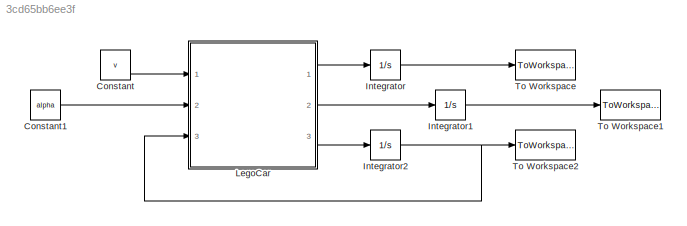
MODEL slx_3cd65bb6ee3f
KIND model
CONFIG AbsTol = auto
CONFIG FixedStep = auto
CONFIG MaxStep = auto
CONFIG MinStep = auto
CONFIG RelTol = 1e-5
CONFIG SampleTimeConstraint = Unconstrained
CONFIG Solver = VariableStepAuto
CONFIG SolverMode = Auto
CONFIG SolverName = VariableStepAuto
CONFIG StartTime = 0.0
CONFIG StopTime = 0.2
BLOCK [Constant] Constant
  Value = v
BLOCK [Constant] Constant1
  Value = alpha
BLOCK [Integrator] Integrator
  InitialCondition = x_car0
  Ports = [1, 1]
BLOCK [Integrator] Integrator1
  InitialCondition = y_car0
  Ports = [1, 1]
BLOCK [Integrator] Integrator2
  InitialCondition = theta0
  Ports = [1, 1]
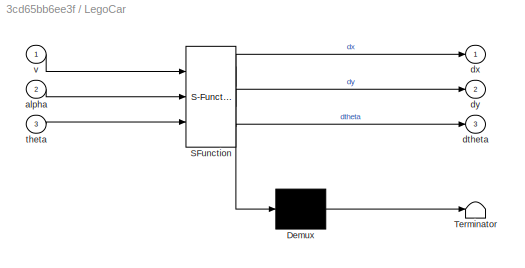
BLOCK [SubSystem] LegoCar
  ErrorFcn = Stateflow.Translate.translate
  PermitHierarchicalResolution = ExplicitOnly
  Ports = [3, 3]
  RequestExecContextInheritance = off
  SFBlockType = MATLAB Function
  TreatAsAtomicUnit = on
  Variant = off
BLOCK [Demux] LegoCar/ Demux 
  Outputs = 1
  Ports = [1, 1]
BLOCK [S-Function] LegoCar/ SFunction 
  EnableBusSupport = on
  FunctionName = sf_sfun
  PortCounts = [3 4]
  Ports = [3, 4]
  SFunctionDeploymentMode = off
  Tag = Stateflow S-Function legocar 2
BLOCK [Terminator] LegoCar/ Terminator 
BLOCK [Inport] LegoCar/alpha
  IconDisplay = Port number
  Port = 2
BLOCK [Outport] LegoCar/dtheta
  IconDisplay = Port number
  Port = 3
BLOCK [Outport] LegoCar/dx
  IconDisplay = Port number
BLOCK [Outport] LegoCar/dy
  IconDisplay = Port number
  Port = 2
BLOCK [Inport] LegoCar/theta
  IconDisplay = Port number
  Port = 3
BLOCK [Inport] LegoCar/v
  IconDisplay = Port number
BLOCK [ToWorkspace] To Workspace
  FixptAsFi = on
  MaxDataPoints = inf
  Ports = [1]
  SampleTime = -1
  Save2DSignal = 3-D array (concatenate along third dimension)
  SaveFormat = Timeseries
  VariableName = x_car_sim
BLOCK [ToWorkspace] To Workspace1
  FixptAsFi = on
  MaxDataPoints = inf
  Ports = [1]
  SampleTime = -1
  Save2DSignal = 3-D array (concatenate along third dimension)
  SaveFormat = Timeseries
  VariableName = y_car_sim
BLOCK [ToWorkspace] To Workspace2
  FixptAsFi = on
  MaxDataPoints = inf
  Ports = [1]
  SampleTime = -1
  Save2DSignal = 3-D array (concatenate along third dimension)
  SaveFormat = Timeseries
  VariableName = theta_sim
LINE Constant1:1 -> LegoCar:2
LINE Constant:1 -> LegoCar:1
LINE Integrator1:1 -> To Workspace1:1
NET Integrator2:1 -> LegoCar:3, To Workspace2:1
LINE Integrator:1 -> To Workspace:1
LINE LegoCar:1 -> Integrator:1
LINE LegoCar:2 -> Integrator1:1
LINE LegoCar:3 -> Integrator2:1
note: NET lines group one-source signal fan-out (src -> all destinations, sorted); 1:1 wires keep LINE
CHART LegoCar states=1 transitions=1
  STATE_LABEL 'eML_blk_kernel()'
  STATE_LABEL 'SCRIPT:\nfunction [dx,dy,dtheta] = fcn(v,alpha,theta)\nl = 11.1;\ndx = v*cos(theta);\ndy = v*sin(theta);\ndtheta = v/l*tan(-alpha);\n'
